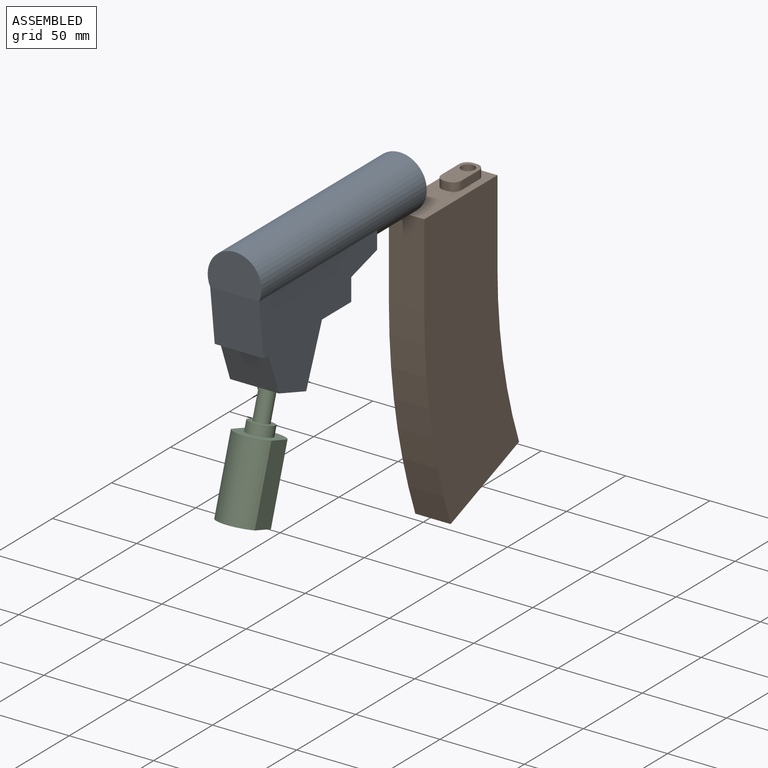
[diagram: assembled view]
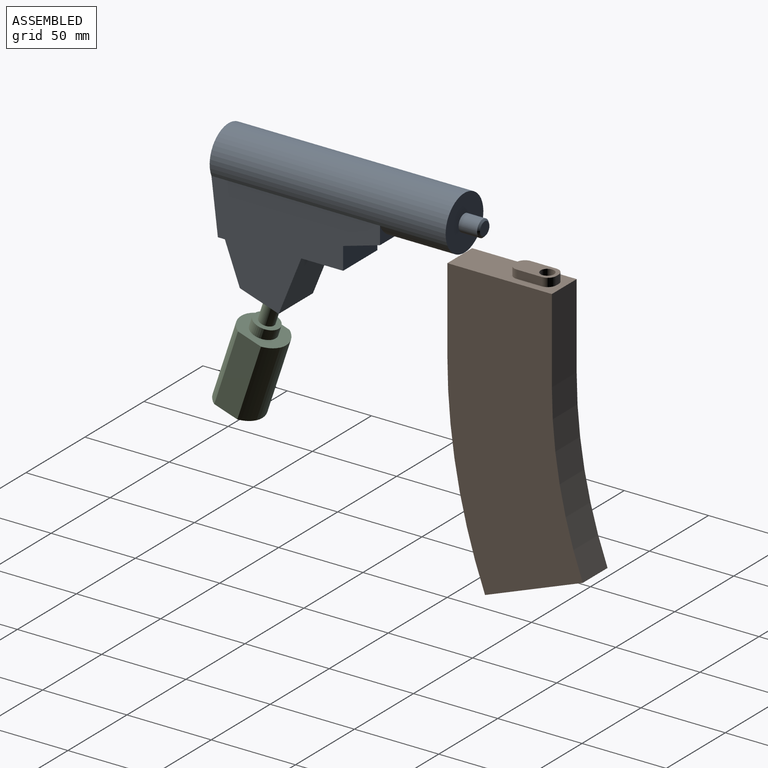
[diagram: assembled view, second angle]
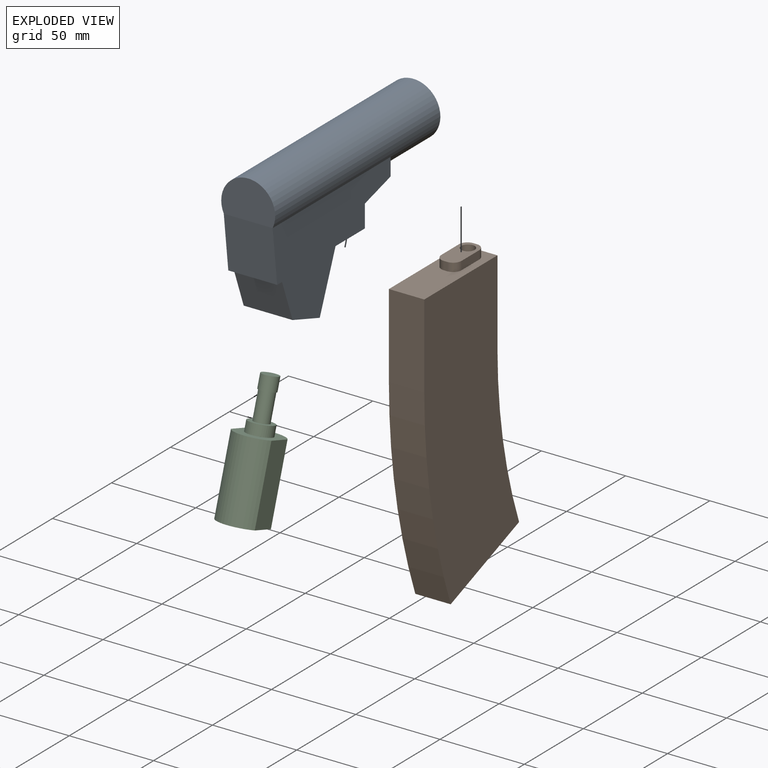
[diagram: exploded view]
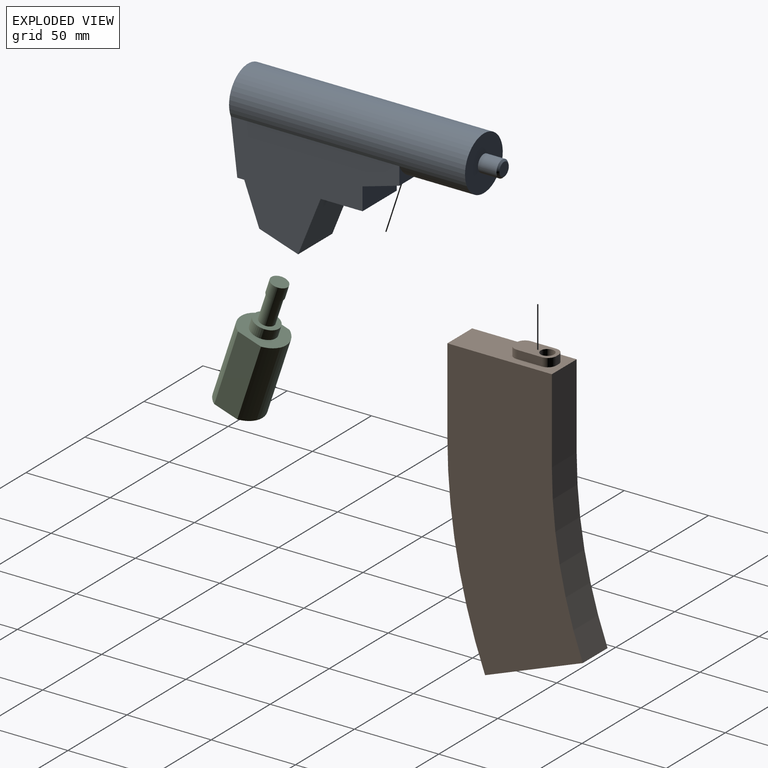
[diagram: exploded view, second angle]
ASSEMBLY  parts=3 mates=4
PART A: 19 faces, bbox 32x152x86.1 mm
  f0: plane 29x10.45mm, normal (0,1,0), area 110.6mm2, adj f2,f3,f4,f7
  f1: plane 32x22.76mm, normal (0,-1,0), area 611.9mm2, adj f4,f13
  f2: plane 100x63.33mm, normal (-1,0,0), area 3621.8mm2, adj f0,f4,f6,f7,f8,f9,f10,f11
  f3: plane 100x63.33mm, normal (1,0,0), area 3621.8mm2, adj f0,f4,f6,f7,f8,f9,f10,f11
  f4: cylinder r=16mm len=140mm, axis (0,1,0), area 10444.5mm2, adj f0,f1,f2,f3,f5
  f5: plane 32x32mm, normal (0,1,0), area 725.7mm2, adj f4,f14
  f6: plane 29x4.14mm, normal (0,0,-1), area 120mm2, adj f2,f3,f12,f13
  f7: plane 29x21.84mm, normal (0,0.27,-0.96), area 658.8mm2, adj f0,f2,f3,f8
  f8: plane 29x13.31mm, normal (0,1,0), area 386.1mm2, adj f2,f3,f7,f9
  f9: plane 29x24.84mm, normal (0,0,-1), area 720.4mm2, adj f2,f3,f8,f10
  f10: plane 33.33x29mm, normal (0,0.93,-0.37), area 1041.6mm2, adj f2,f3,f9,f11
  f11: plane 29x23.04mm, normal (0,-0.31,-0.95), area 608.8mm2, adj f2,f3,f10,f12,f17
  f12: plane 29x23.85mm, normal (0,-0.94,-0.35), area 738.3mm2, adj f2,f3,f6,f11
  f13: plane 31.89x29mm, normal (0,-0.99,-0.12), area 931.3mm2, adj f1,f2,f3,f6
  f14: cylinder r=5mm len=11mm, axis (0,-1,0), area 345.6mm2, adj f5,f16
  f15: plane 8x8mm, normal (0,1,0), area 50.3mm2, adj f16
  f16: cone r=4mm half-angle=45deg, axis (0,-1,0), area 40mm2, adj f14,f15
  f17: cylinder r=5.49mm len=27.18mm, axis (0,-0.31,-0.95), area 862.7mm2, adj f11,f18
  f18: plane 10.99x10.43mm, normal (0,-0.31,-0.95), area 94.8mm2, adj f17
PART B: 19 faces, bbox 80.3x177x21 mm
  f0: plane 50x21mm, normal (-1,0,0), area 1050mm2, adj f1,f5,f6,f7
  f1: cylinder r=281.85mm len=100mm, axis (0,0,-1), area 2146.8mm2, adj f0,f2,f6,f7
  f2: plane 57.97x22mm, normal (-0.35,-0.93,0), area 1302mm2, adj f1,f3,f6,f7
  f3: cylinder r=343.85mm len=122mm, axis (0,0,-1), area 2619mm2, adj f2,f4,f6,f7
  f4: plane 50x21mm, normal (1,0,0), area 1050mm2, adj f3,f5,f6,f7
  f5: plane 62x21mm, normal (0,1,0), area 1023.5mm2, adj f0,f4,f6,f7,f8,f9,f10,f11
  f6: plane 172x80.34mm, normal (0,0,1), area 10135.1mm2, adj f0,f1,f2,f3,f4,f5
  f7: plane 172x80.34mm, normal (0,0,-1), area 10135.1mm2, adj f0,f1,f2,f3,f4,f5
  f8: plane 15x5mm, normal (0,0,1), area 75mm2, adj f5,f9,f16,f17
  f9: cylinder r=5mm len=5mm, axis (0,-1,0), area 39.3mm2, adj f5,f8,f10,f17
  f10: plane 5x2mm, normal (1,0,0), area 10mm2, adj f5,f9,f11,f17
  f11: cylinder r=5mm len=5mm, axis (0,-1,0), area 39.3mm2, adj f5,f10,f12,f17
  f12: plane 15x5mm, normal (0,0,-1), area 75mm2, adj f5,f11,f13,f17
  f13: cylinder r=5mm len=5mm, axis (0,-1,0), area 39.3mm2, adj f5,f12,f14,f17
  f14: plane 5x2mm, normal (-1,0,0), area 10mm2, adj f5,f13,f16,f17
  f15: cylinder r=4mm len=8mm, axis (0,-1,0), area 125.7mm2, adj f17,f18
  f16: cylinder r=5mm len=5mm, axis (0,-1,0), area 39.3mm2, adj f5,f8,f14,f17
  f17: plane 25x12mm, normal (0,1,0), area 228.3mm2, adj f8,f9,f10,f11,f12,f13,f14,f15
  f18: plane 8x8mm, normal (0,1,0), area 50.3mm2, adj f15
PART C: 12 faces, bbox 24x28x75 mm
  f0: cylinder r=14mm len=45mm, axis (0,0,-1), area 1297.4mm2, adj f2,f3,f10,f11
  f1: cylinder r=14mm len=45mm, axis (0,0,-1), area 1297.4mm2, adj f2,f3,f10,f11
  f2: plane 28x24mm, normal (0,0,1), area 400mm2, adj f0,f1,f4,f10,f11
  f3: plane 28x24mm, normal (0,0,-1), area 576.7mm2, adj f0,f1,f10,f11
  f4: cylinder r=7.5mm len=15mm, axis (0,0,-1), area 282.7mm2, adj f2,f5
  f5: plane 15x15mm, normal (0,0,1), area 113.1mm2, adj f4,f6
  f6: cylinder r=4.5mm len=16mm, axis (0,0,-1), area 452.4mm2, adj f5,f7
  f7: plane 10x10mm, normal (0,0,-1), area 14.9mm2, adj f6,f8
  f8: cylinder r=5mm len=10mm, axis (0,0,-1), area 251.3mm2, adj f7,f9
  f9: plane 10x10mm, normal (0,0,1), area 78.5mm2, adj f8
  f10: plane 45x14.42mm, normal (1,0,0), area 649mm2, adj f0,f1,f2,f3
  f11: plane 45x14.42mm, normal (-1,0,0), area 649mm2, adj f0,f1,f2,f3
PLACE A t=(-8.16,109.72,-35.24)mm
PLACE B rot(axis=(0.58,-0.58,-0.58),120deg) t=(20.84,151.6,86.01)mm
PLACE C rot(axis=(-1,0,0),18.2deg) t=(6.34,16.48,-47.65)mm
MATE planar B.f7 <-> A.f3  axis (1,0,0) through (20.84,184.76,-12.79)mm
MATE cylindrical C.f0 <-> A.f17  axis (0,0.31,0.95) through (6.34,32.44,0.79)mm
MATE planar B.f4 <-> A.f4  axis (0,-1,0) through (10.34,149.72,43.64)mm
MATE planar A.f3 <-> B.f7  axis (1,0,0) through (20.84,17.69,46.11)mm
